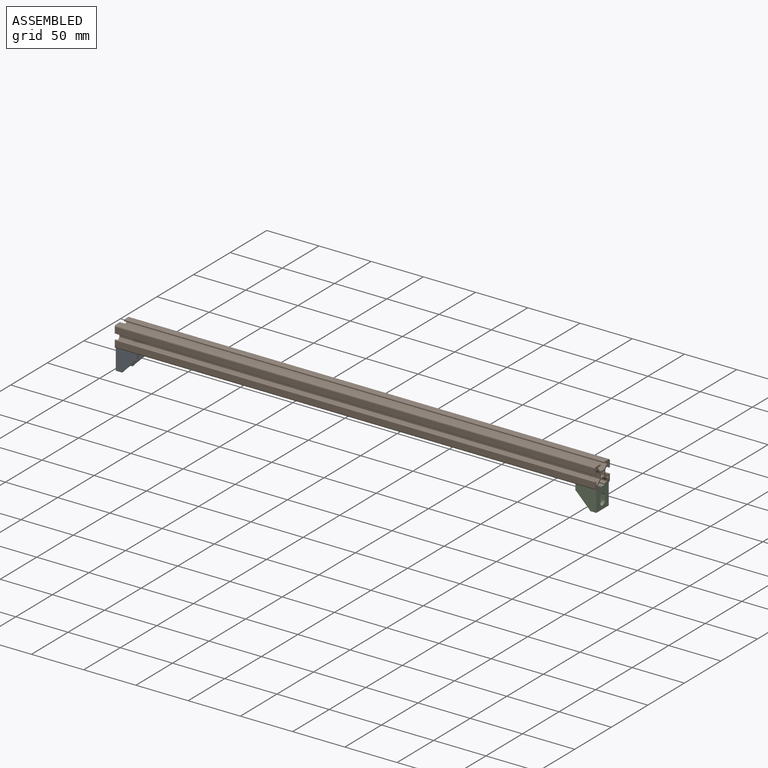
[diagram: assembled view]
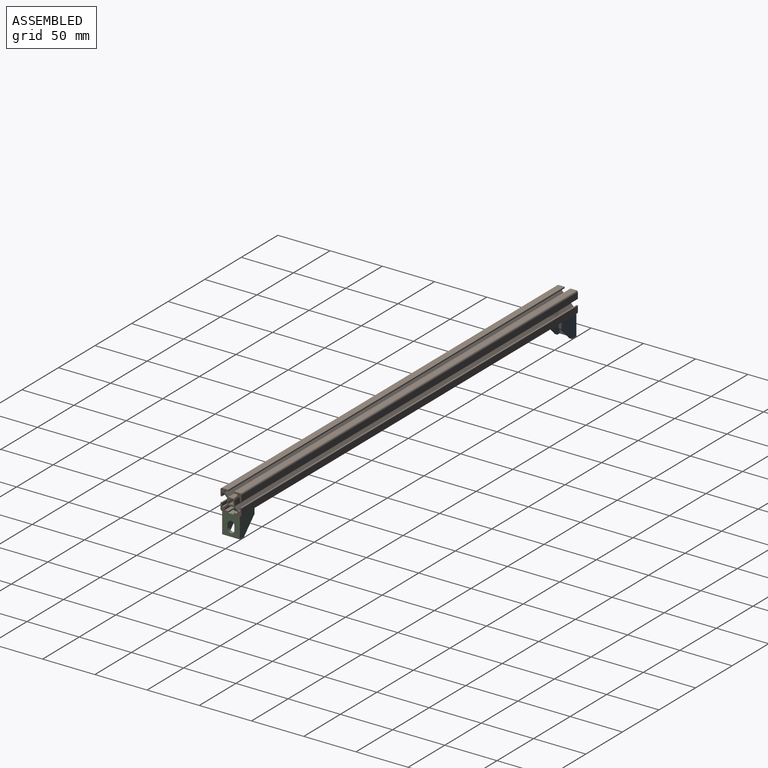
[diagram: assembled view, second angle]
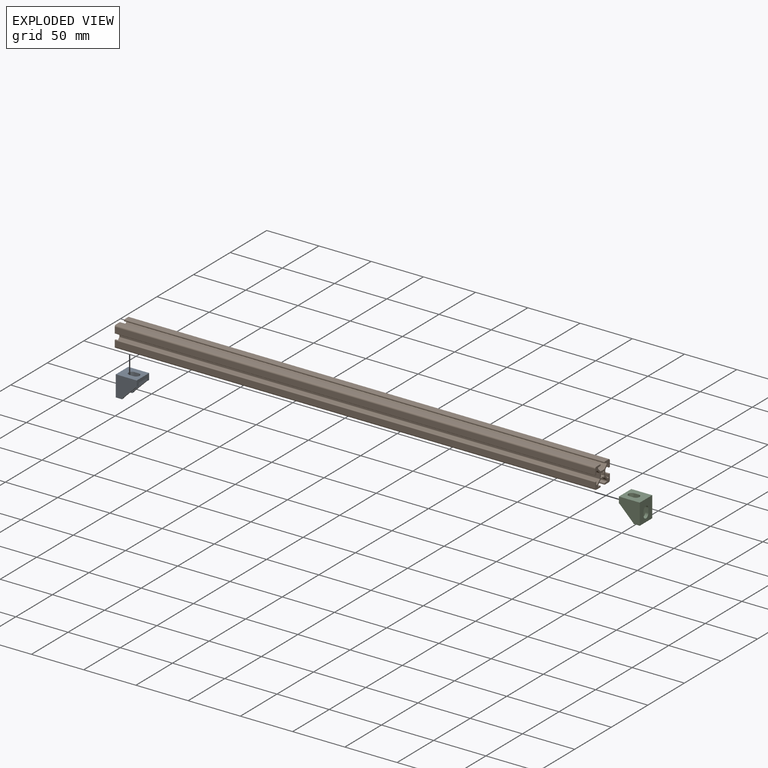
[diagram: exploded view]
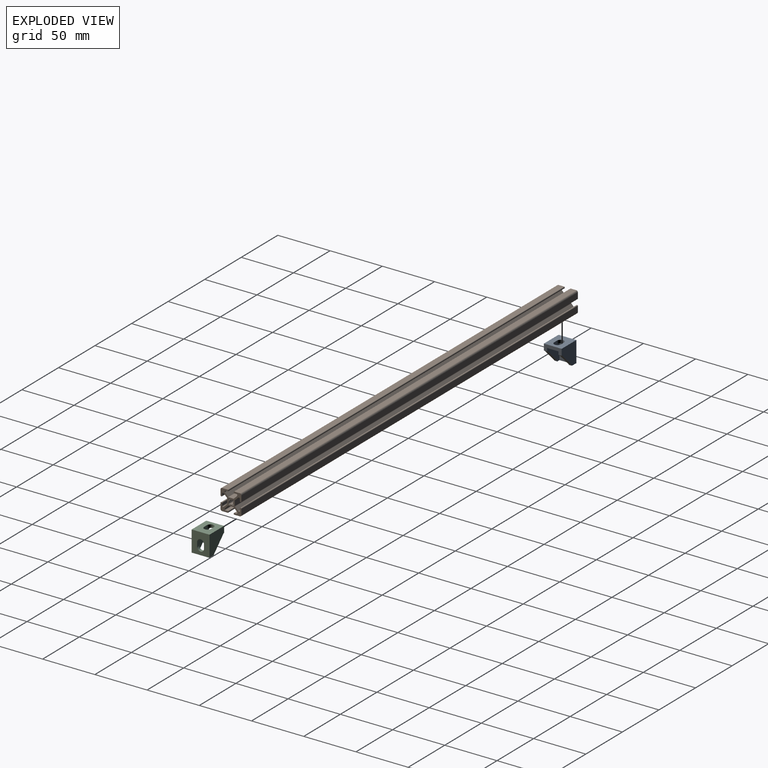
[diagram: exploded view, second angle]
ASSEMBLY  parts=3 mates=4
PART A: 24 faces, bbox 17x20x20 mm
  f0: plane 17x6mm, normal (0,0,1), area 69mm2, adj f3,f4,f5,f7,f8,f9,f12,f15
  f1: plane 17x11mm, normal (0,0,1), area 126.4mm2, adj f2,f7,f8,f9,f16,f17,f18,f19
  f2: plane 17x6mm, normal (0,-1,0), area 69mm2, adj f1,f3,f5,f6,f8,f9,f10,f14
  f3: plane 20x20mm, normal (1,0,0), area 295.1mm2, adj f0,f2,f4,f6,f13,f14,f15
  f4: plane 20x17mm, normal (0,1,0), area 279.4mm2, adj f0,f3,f5,f6,f20,f21,f22,f23
  f5: plane 20x20mm, normal (-1,0,0), area 295.1mm2, adj f0,f2,f4,f6,f10,f11,f12
  f6: plane 20x17mm, normal (0,0,-1), area 279.4mm2, adj f2,f3,f4,f5,f16,f17,f18,f19
  f7: plane 17x11mm, normal (0,-1,0), area 126.4mm2, adj f0,f1,f8,f9,f20,f21,f22,f23
  f8: plane 17x17mm, normal (-1,0,0), area 184.1mm2, adj f0,f1,f2,f7,f13,f14,f15
  f9: plane 17x17mm, normal (1,0,0), area 184.1mm2, adj f0,f1,f2,f7,f10,f11,f12
  f10: plane 3x0.5mm, normal (0,0,1), area 1.5mm2, adj f2,f5,f9,f11
  f11: plane 13.5x13.5mm, normal (0,-0.71,0.71), area 57.3mm2, adj f5,f9,f10,f12
  f12: plane 3x0.5mm, normal (0,-1,0), area 1.5mm2, adj f0,f5,f9,f11
  f13: plane 13.5x13.5mm, normal (0,-0.71,0.71), area 57.3mm2, adj f3,f8,f14,f15
  f14: plane 3x0.5mm, normal (0,0,1), area 1.5mm2, adj f2,f3,f8,f13
  f15: plane 3x0.5mm, normal (0,-1,0), area 1.5mm2, adj f0,f3,f8,f13
  f16: cylinder r=3.3mm len=6.6mm, axis (0,0,1), area 31.1mm2, adj f1,f6,f17,f19
  f17: plane 4x3mm, normal (1,0,0), area 12mm2, adj f1,f6,f16,f18
  f18: cylinder r=3.3mm len=6.6mm, axis (0,0,1), area 31.1mm2, adj f1,f6,f17,f19
  f19: plane 4x3mm, normal (-1,0,0), area 12mm2, adj f1,f6,f16,f18
  f20: cylinder r=3.3mm len=6.6mm, axis (0,-1,0), area 31.1mm2, adj f4,f7,f21,f23
  f21: plane 4x3mm, normal (-1,0,0), area 12mm2, adj f4,f7,f20,f22
  f22: cylinder r=3.3mm len=6.6mm, axis (0,-1,0), area 31.1mm2, adj f4,f7,f21,f23
  f23: plane 4x3mm, normal (1,0,0), area 12mm2, adj f4,f7,f20,f22
PART B: 106 faces, bbox 460x20x20 mm
  f0: cylinder r=2.11mm len=460mm, axis (1,0,0), area 758.9mm2, adj f1,f15,f16,f17
  f1: cylinder r=0.79mm len=460mm, axis (1,0,0), area 761.4mm2, adj f0,f2,f16,f17
  f2: plane 460x0.18mm, normal (0,-0.71,0.71), area 116.8mm2, adj f1,f3,f16,f17
  f3: cylinder r=0.79mm len=460mm, axis (1,0,0), area 761.4mm2, adj f2,f4,f16,f17
  f4: cylinder r=2.11mm len=460mm, axis (1,0,0), area 758.9mm2, adj f3,f5,f16,f17
  f5: cylinder r=0.79mm len=460mm, axis (1,0,0), area 761.4mm2, adj f4,f6,f16,f17
  f6: plane 460x0.18mm, normal (0,0.71,0.71), area 116.8mm2, adj f5,f7,f16,f17
  f7: cylinder r=0.79mm len=460mm, axis (1,0,0), area 761.4mm2, adj f6,f8,f16,f17
  f8: cylinder r=2.11mm len=460mm, axis (1,0,0), area 758.9mm2, adj f7,f9,f16,f17
  f9: cylinder r=0.79mm len=460mm, axis (1,0,0), area 761.4mm2, adj f8,f10,f16,f17
  f10: plane 460x0.18mm, normal (0,0.71,-0.71), area 116.8mm2, adj f9,f11,f16,f17
  f11: cylinder r=0.79mm len=460mm, axis (1,0,0), area 761.4mm2, adj f10,f12,f16,f17
  f12: cylinder r=2.11mm len=460mm, axis (1,0,0), area 758.9mm2, adj f11,f13,f16,f17
  f13: cylinder r=0.79mm len=460mm, axis (1,0,0), area 761.4mm2, adj f12,f14,f16,f17
  f14: plane 460x0.18mm, normal (0,-0.71,-0.71), area 116.8mm2, adj f13,f15,f16,f17
  f15: cylinder r=0.79mm len=460mm, axis (1,0,0), area 761.4mm2, adj f0,f14,f16,f17
  f16: plane 20x20mm, normal (-1,0,0), area 159.4mm2, adj f0,f1,f2,f3,f4,f5,f6,f7
  f17: plane 20x20mm, normal (1,0,0), area 159.4mm2, adj f0,f1,f2,f3,f4,f5,f6,f7
  f18: cylinder r=0.51mm len=460mm, axis (1,0,0), area 366.1mm2, adj f16,f17,f19,f105
  f19: plane 460x0.73mm, normal (0,1,0), area 333.9mm2, adj f16,f17,f18,f20
  f20: cylinder r=0.51mm len=460mm, axis (1,0,0), area 183.5mm2, adj f16,f17,f19,f21
  f21: plane 460x3.1mm, normal (0,0.71,-0.71), area 2018.7mm2, adj f16,f17,f20,f22
  f22: cylinder r=0.51mm len=460mm, axis (1,0,0), area 183.5mm2, adj f16,f17,f21,f23
  f23: plane 460x4.77mm, normal (0,0,-1), area 2193.2mm2, adj f16,f17,f22,f24
  f24: cylinder r=0.51mm len=460mm, axis (1,0,0), area 183.5mm2, adj f16,f17,f23,f25
  f25: plane 460x3.1mm, normal (0,-0.71,-0.71), area 2018.7mm2, adj f16,f17,f24,f26
  f26: cylinder r=0.51mm len=460mm, axis (1,0,0), area 183.5mm2, adj f16,f17,f25,f27
  f27: plane 460x0.73mm, normal (0,-1,0), area 333.9mm2, adj f16,f17,f26,f28
  f28: cylinder r=0.51mm len=460mm, axis (1,0,0), area 366.1mm2, adj f16,f17,f27,f29
  f29: plane 460x2.35mm, normal (0,0,1), area 1080.5mm2, adj f16,f17,f28,f30
  f30: cylinder r=0.51mm len=460mm, axis (1,0,0), area 366.1mm2, adj f16,f17,f29,f31
  f31: plane 460x0.48mm, normal (0,-1,0), area 222.6mm2, adj f16,f17,f30,f32
  f32: cylinder r=0.51mm len=460mm, axis (1,0,0), area 366.1mm2, adj f16,f17,f31,f33
  f33: plane 460x5.36mm, normal (0,0,-1), area 2466.5mm2, adj f16,f17,f32,f34
  f34: cylinder r=1.51mm len=460mm, axis (1,0,0), area 1081mm2, adj f16,f17,f33,f35
  f35: plane 460x5.36mm, normal (0,1,0), area 2466.5mm2, adj f16,f17,f34,f36
  f36: cylinder r=0.51mm len=460mm, axis (1,0,0), area 366.1mm2, adj f16,f17,f35,f37
  f37: plane 460x0.48mm, normal (0,0,1), area 222.6mm2, adj f16,f17,f36,f38
  f38: cylinder r=0.51mm len=460mm, axis (1,0,0), area 366.1mm2, adj f16,f17,f37,f39
  f39: plane 460x2.35mm, normal (0,-1,0), area 1080.5mm2, adj f16,f17,f38,f40
  f40: cylinder r=0.51mm len=460mm, axis (1,0,0), area 366.1mm2, adj f16,f17,f39,f41
  f41: plane 460x0.73mm, normal (0,0,1), area 333.9mm2, adj f16,f17,f40,f42
  f42: cylinder r=0.51mm len=460mm, axis (1,0,0), area 183.5mm2, adj f16,f17,f41,f43
  f43: plane 460x3.1mm, normal (0,0.71,0.71), area 2018.7mm2, adj f16,f17,f42,f44
  f44: cylinder r=0.51mm len=460mm, axis (1,0,0), area 183.5mm2, adj f16,f17,f43,f45
  f45: plane 460x4.77mm, normal (0,1,0), area 2193.2mm2, adj f16,f17,f44,f46
  f46: cylinder r=0.51mm len=460mm, axis (1,0,0), area 183.5mm2, adj f16,f17,f45,f47
  f47: plane 460x3.1mm, normal (0,0.71,-0.71), area 2018.7mm2, adj f16,f17,f46,f48
  f48: cylinder r=0.51mm len=460mm, axis (1,0,0), area 183.5mm2, adj f16,f17,f47,f49
  f49: plane 460x0.73mm, normal (0,0,-1), area 333.9mm2, adj f16,f17,f48,f50
  f50: cylinder r=0.51mm len=460mm, axis (1,0,0), area 366.1mm2, adj f16,f17,f49,f51
  f51: plane 460x2.35mm, normal (0,-1,0), area 1080.5mm2, adj f16,f17,f50,f52
  f52: cylinder r=0.51mm len=460mm, axis (1,0,0), area 366.1mm2, adj f16,f17,f51,f53
  f53: plane 460x0.48mm, normal (0,0,-1), area 222.6mm2, adj f16,f17,f52,f54
  f54: cylinder r=0.51mm len=460mm, axis (1,0,0), area 366.1mm2, adj f16,f17,f53,f55
  f55: plane 460x5.36mm, normal (0,1,0), area 2466.5mm2, adj f16,f17,f54,f56
  f56: cylinder r=1.51mm len=460mm, axis (1,0,0), area 1081mm2, adj f16,f17,f55,f57
  f57: plane 460x5.36mm, normal (0,0,1), area 2466.5mm2, adj f16,f17,f56,f58
  f58: cylinder r=0.51mm len=460mm, axis (1,0,0), area 366.1mm2, adj f16,f17,f57,f59
  f59: plane 460x0.48mm, normal (0,-1,0), area 222.6mm2, adj f16,f17,f58,f60
  f60: cylinder r=0.51mm len=460mm, axis (1,0,0), area 366.1mm2, adj f16,f17,f59,f61
  f61: plane 460x2.35mm, normal (0,0,-1), area 1080.5mm2, adj f16,f17,f60,f62
  f62: cylinder r=0.51mm len=460mm, axis (1,0,0), area 366.1mm2, adj f16,f17,f61,f63
  f63: plane 460x0.73mm, normal (0,-1,0), area 333.9mm2, adj f16,f17,f62,f64
  f64: cylinder r=0.51mm len=460mm, axis (1,0,0), area 183.5mm2, adj f16,f17,f63,f65
  f65: plane 460x3.1mm, normal (0,-0.71,0.71), area 2018.7mm2, adj f16,f17,f64,f66
  f66: cylinder r=0.51mm len=460mm, axis (1,0,0), area 183.5mm2, adj f16,f17,f65,f67
  f67: plane 460x4.77mm, normal (0,0,1), area 2193.2mm2, adj f16,f17,f66,f68
  f68: cylinder r=0.51mm len=460mm, axis (1,0,0), area 183.5mm2, adj f16,f17,f67,f69
  f69: plane 460x3.1mm, normal (0,0.71,0.71), area 2018.7mm2, adj f16,f17,f68,f70
  f70: cylinder r=0.51mm len=460mm, axis (1,0,0), area 183.5mm2, adj f16,f17,f69,f71
  f71: plane 460x0.73mm, normal (0,1,0), area 333.9mm2, adj f16,f17,f70,f72
  f72: cylinder r=0.51mm len=460mm, axis (1,0,0), area 366.1mm2, adj f16,f17,f71,f73
  f73: plane 460x2.35mm, normal (0,0,-1), area 1080.5mm2, adj f16,f17,f72,f74
  f74: cylinder r=0.51mm len=460mm, axis (1,0,0), area 366.1mm2, adj f16,f17,f73,f75
  f75: plane 460x0.48mm, normal (0,1,0), area 222.6mm2, adj f16,f17,f74,f76
  f76: cylinder r=0.51mm len=460mm, axis (1,0,0), area 366.1mm2, adj f16,f17,f75,f77
  f77: plane 460x5.36mm, normal (0,0,1), area 2466.5mm2, adj f16,f17,f76,f78
  f78: cylinder r=1.51mm len=460mm, axis (1,0,0), area 1081mm2, adj f16,f17,f77,f79
  f79: plane 460x5.36mm, normal (0,-1,0), area 2466.5mm2, adj f16,f17,f78,f80
  f80: cylinder r=0.51mm len=460mm, axis (1,0,0), area 366.1mm2, adj f16,f17,f79,f81
  f81: plane 460x0.48mm, normal (0,0,-1), area 222.6mm2, adj f16,f17,f80,f82
  f82: cylinder r=0.51mm len=460mm, axis (1,0,0), area 366.1mm2, adj f16,f17,f81,f83
  f83: plane 460x2.35mm, normal (0,1,0), area 1080.5mm2, adj f16,f17,f82,f84
  f84: cylinder r=0.51mm len=460mm, axis (1,0,0), area 366.1mm2, adj f16,f17,f83,f85
  f85: plane 460x0.73mm, normal (0,0,-1), area 333.9mm2, adj f16,f17,f84,f86
  f86: cylinder r=0.51mm len=460mm, axis (1,0,0), area 183.5mm2, adj f16,f17,f85,f87
  f87: plane 460x3.1mm, normal (0,-0.71,-0.71), area 2018.7mm2, adj f16,f17,f86,f88
  f88: cylinder r=0.51mm len=460mm, axis (1,0,0), area 183.5mm2, adj f16,f17,f87,f89
  f89: plane 460x4.77mm, normal (0,-1,0), area 2193.2mm2, adj f16,f17,f88,f90
  f90: cylinder r=0.51mm len=460mm, axis (1,0,0), area 183.5mm2, adj f16,f17,f89,f91
  f91: plane 460x3.1mm, normal (0,-0.71,0.71), area 2018.7mm2, adj f16,f17,f90,f92
  f92: cylinder r=0.51mm len=460mm, axis (1,0,0), area 183.5mm2, adj f16,f17,f91,f93
  f93: plane 460x0.73mm, normal (0,0,1), area 333.9mm2, adj f16,f17,f92,f94
  f94: cylinder r=0.51mm len=460mm, axis (1,0,0), area 366.1mm2, adj f16,f17,f93,f95
  f95: plane 460x2.35mm, normal (0,1,0), area 1080.5mm2, adj f16,f17,f94,f96
  f96: cylinder r=0.51mm len=460mm, axis (1,0,0), area 366.1mm2, adj f16,f17,f95,f97
  f97: plane 460x0.48mm, normal (0,0,1), area 222.6mm2, adj f16,f17,f96,f98
  f98: cylinder r=0.51mm len=460mm, axis (1,0,0), area 366.1mm2, adj f16,f17,f97,f99
  f99: plane 460x5.36mm, normal (0,-1,0), area 2466.5mm2, adj f16,f17,f98,f100
  f100: cylinder r=1.51mm len=460mm, axis (1,0,0), area 1081mm2, adj f16,f17,f99,f101
  f101: plane 460x5.36mm, normal (0,0,-1), area 2466.5mm2, adj f16,f17,f100,f102
  f102: cylinder r=0.51mm len=460mm, axis (1,0,0), area 366.1mm2, adj f16,f17,f101,f103
  f103: plane 460x0.48mm, normal (0,1,0), area 222.6mm2, adj f16,f17,f102,f104
  f104: cylinder r=0.51mm len=460mm, axis (1,0,0), area 366.1mm2, adj f16,f17,f103,f105
  f105: plane 460x2.35mm, normal (0,0,1), area 1080.5mm2, adj f16,f17,f18,f104
PART C: same geometry as A
PLACE A rot(axis=(-0.71,0.71,0),180deg) t=(-260.81,317.77,302.3)mm
PLACE B rot(axis=(-0.01,-1,0.03),0deg) t=(-115.51,317.77,198.62)mm
PLACE C rot(axis=(0.71,0.71,0),180deg) t=(179.19,317.77,302.3)mm
MATE planar B.f12 <-> C.f4  axis (1,0,0) through (189.19,317.77,312.29)mm
MATE planar A.f16 <-> B.f101  axis (0,0,1) through (-261.31,317.77,302.3)mm
MATE planar C.f6 <-> B.f33  axis (0,0,1) through (179.51,317.77,302.3)mm
MATE planar A.f20 <-> B.f16  axis (-1,0,0) through (-270.81,317.77,292.8)mm
